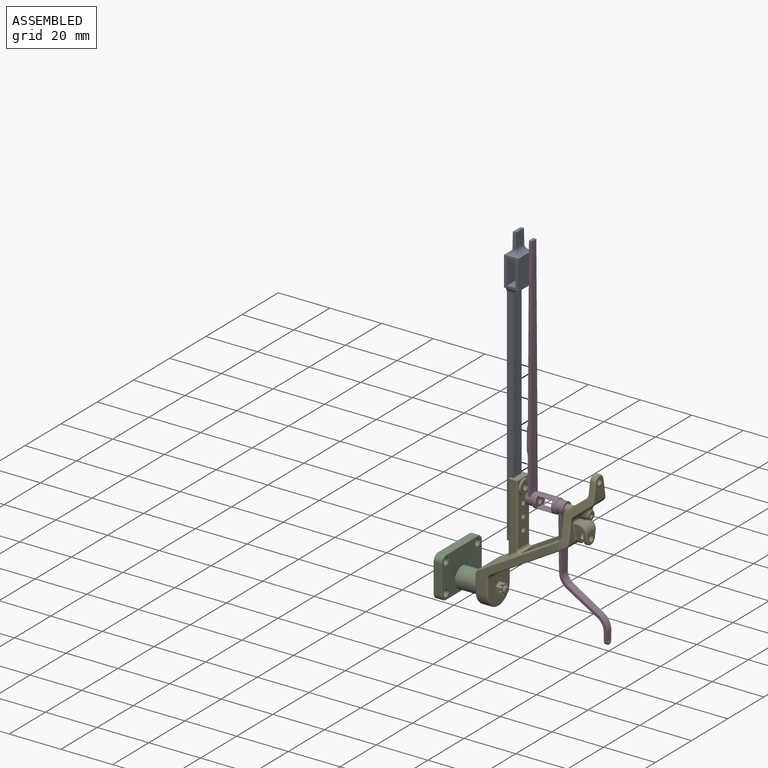
[diagram: assembled view]
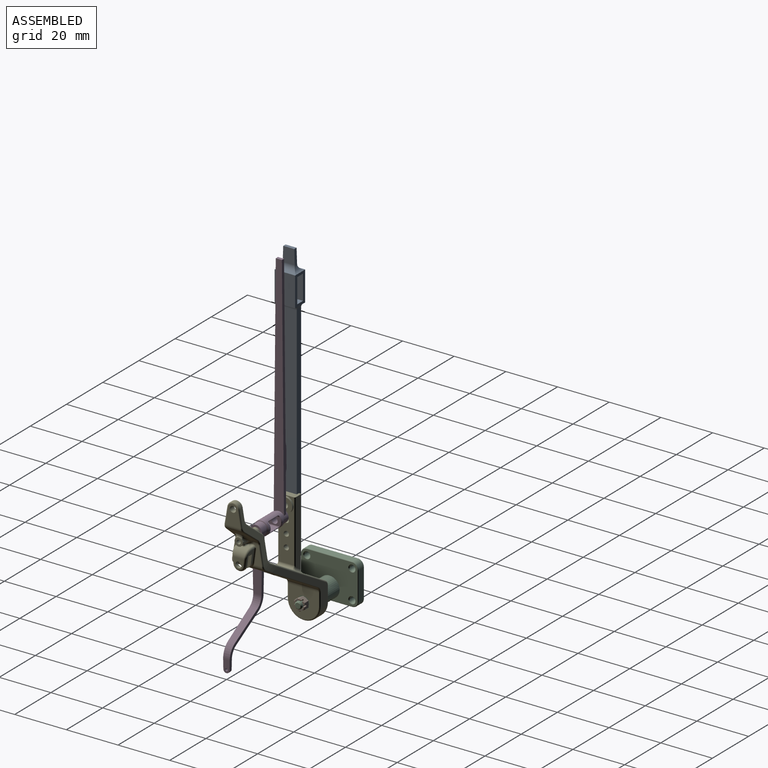
[diagram: assembled view, second angle]
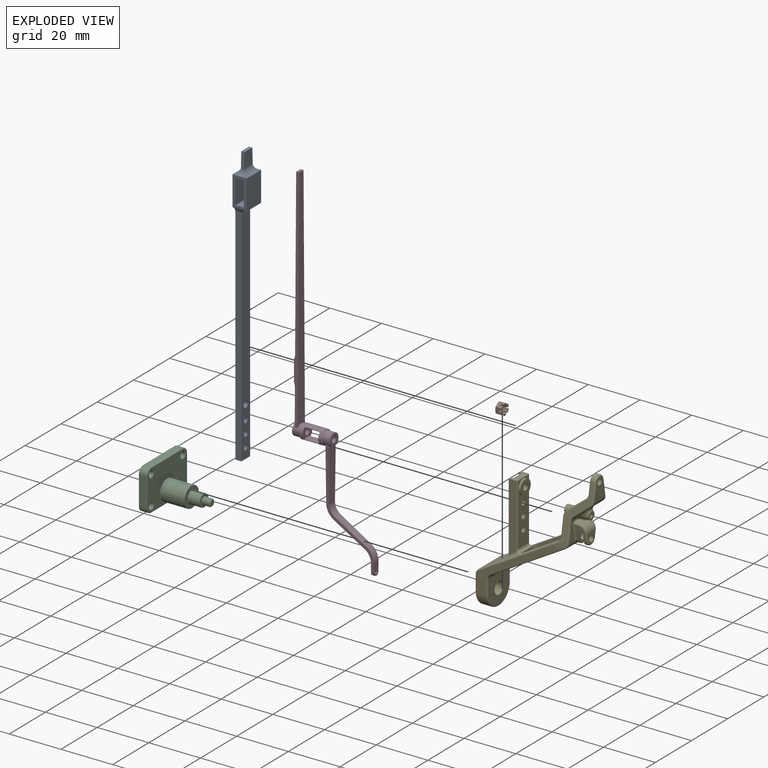
[diagram: exploded view]
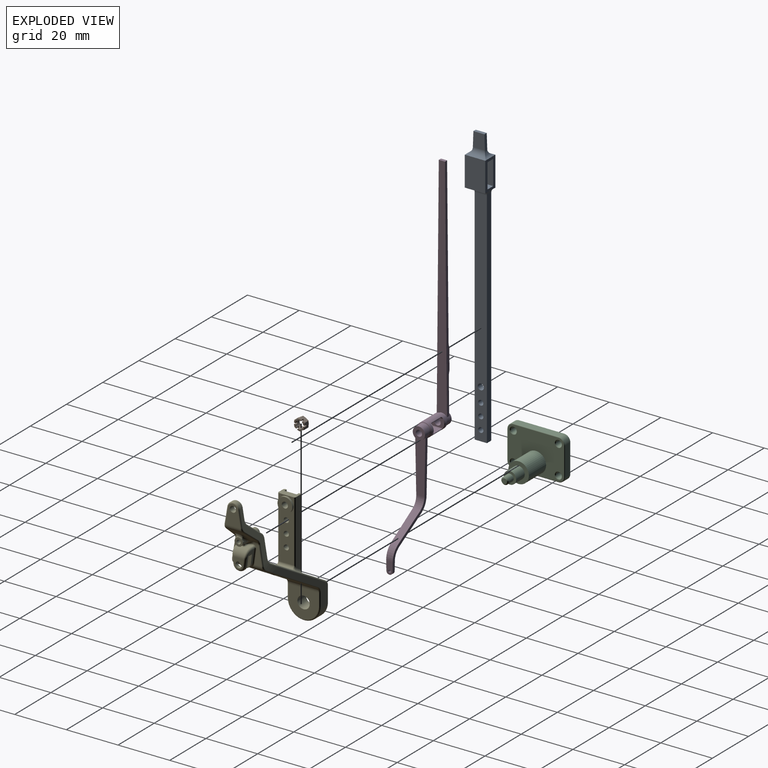
[diagram: exploded view, second angle]
ASSEMBLY  parts=5 mates=4
PART A: 29 faces, bbox 7.9x5.6x108.3 mm
  f0: plane 11.51x5.56mm, normal (-1,0,0), area 33.7mm2, adj f2,f3,f4,f5,f6,f7,f8,f13
  f1: plane 11.51x5.56mm, normal (1,0,0), area 33.7mm2, adj f2,f3,f4,f5,f6,f7,f8,f9
  f2: plane 7.94x0.79mm, normal (0,0,-1), area 6.3mm2, adj f0,f1,f3,f24
  f3: plane 11.51x7.94mm, normal (0,-1,0), area 91.4mm2, adj f0,f1,f2,f23
  f4: plane 100.41x7.94mm, normal (0,1,0), area 502.9mm2, adj f0,f1,f9,f10,f11,f12,f13,f22
  f5: plane 7.94x3.18mm, normal (0,0,-1), area 25.2mm2, adj f0,f1,f6,f8
  f6: plane 9.53x7.94mm, normal (0,-1,0), area 75.6mm2, adj f0,f1,f5,f7
  f7: plane 7.94x3.18mm, normal (0,0,1), area 25.2mm2, adj f0,f1,f6,f8
  f8: plane 9.53x7.94mm, normal (0,1,0), area 75.6mm2, adj f0,f1,f5,f7
  f9: cylinder r=2.38mm len=4.76mm, axis (0,1,0), area 9mm2, adj f1,f4,f10,f24
  f10: plane 86.66x2.39mm, normal (1,0,0), area 206.3mm2, adj f4,f9,f11,f14,f24
  f11: plane 4.76x2.38mm, normal (0,0,-1), area 11.3mm2, adj f4,f10,f12,f14
  f12: plane 86.66x2.39mm, normal (-1,0,0), area 206.3mm2, adj f4,f11,f13,f14,f24
  f13: cylinder r=2.38mm len=4.76mm, axis (0,1,0), area 9mm2, adj f0,f4,f12,f24
  f14: plane 86.52x4.76mm, normal (0,-1,0), area 398.3mm2, adj f10,f11,f12,f24,f25,f26,f27,f28
  f15: plane 4.27x1.29mm, normal (0,0,1), area 5.5mm2, adj f16,f19,f20,f21
  f16: plane 5.76x1.3mm, normal (-1,0,0.03), area 7.4mm2, adj f15,f17,f20,f21,f22,f23
  f17: cylinder r=2.38mm len=5.56mm, axis (0,1,0), area 7.9mm2, adj f0,f16,f22,f23
  f18: cylinder r=2.38mm len=5.56mm, axis (0,1,0), area 7.9mm2, adj f1,f19,f22,f23
  f19: plane 5.76x1.3mm, normal (1,0,0.03), area 7.4mm2, adj f15,f18,f20,f21,f22,f23
  f20: plane 5.57x4.65mm, normal (0,-1,0), area 24.8mm2, adj f15,f16,f19,f23
  f21: plane 5.57x4.65mm, normal (0,1,0), area 24.8mm2, adj f15,f16,f19,f22
  f22: cylinder r=2.38mm len=7.94mm, axis (1,0,0), area 20.7mm2, adj f4,f16,f17,f18,f19,f21
  f23: cylinder r=2.38mm len=7.94mm, axis (1,0,0), area 20.7mm2, adj f3,f16,f17,f18,f19,f20
  f24: cylinder r=2.38mm len=7.94mm, axis (-1,0,0), area 22.8mm2, adj f2,f9,f10,f12,f13,f14
  f25: cylinder r=0.99mm len=2.38mm, axis (0,-1,0), area 14.8mm2, adj f4,f14
  f26: cylinder r=0.99mm len=2.38mm, axis (0,-1,0), area 14.8mm2, adj f4,f14
  f27: cylinder r=0.99mm len=2.38mm, axis (0,-1,0), area 14.8mm2, adj f4,f14
  f28: cylinder r=1.19mm len=2.38mm, axis (0,-1,0), area 17.8mm2, adj f4,f14
PART B: 52 faces, bbox 2.4x4.7x4.7 mm
  f0: cylinder r=1.42mm len=2.85mm, axis (1,0,0), area 16mm2, adj f3,f6,f11,f15,f19,f32,f33,f34
  f1: plane 1.58x0.56mm, normal (-1,0,0), area 0.6mm2, adj f19,f31,f45,f47
  f2: cone r=2.03mm half-angle=60deg, axis (1,0,0), area 0.3mm2, adj f7,f13,f16,f41,f49
  f3: cone r=1.57mm half-angle=45deg, axis (-1,0,0), area 0.2mm2, adj f0,f16,f41,f49
  f4: plane 1.37x1.02mm, normal (-1,0,0), area 0.6mm2, adj f15,f29,f39,f50
  f5: cone r=2.03mm half-angle=60deg, axis (1,0,0), area 0.3mm2, adj f8,f12,f17,f34,f48
  f6: cone r=1.57mm half-angle=45deg, axis (-1,0,0), area 0.2mm2, adj f0,f12,f34,f48
  f7: plane 2.25x2.03mm, normal (0,0.5,-0.87), area 4.6mm2, adj f2,f13,f18,f23,f28,f29,f49,f50
  f8: plane 2.25x2.03mm, normal (0,-0.5,0.87), area 4.6mm2, adj f5,f14,f17,f25,f26,f31,f46,f47
  f9: plane 1.37x1.02mm, normal (-1,0,0), area 0.6mm2, adj f30,f32,f35,f40
  f10: cone r=2.03mm half-angle=60deg, axis (1,0,0), area 0.3mm2, adj f14,f18,f20,f38,f44
  f11: cone r=1.57mm half-angle=45deg, axis (-1,0,0), area 0.2mm2, adj f0,f20,f38,f44
  f12: plane 1.37x1.02mm, normal (-1,0,0), area 0.6mm2, adj f5,f6,f34,f48
  f13: plane 2.25x2.03mm, normal (0,-0.5,-0.87), area 4.6mm2, adj f2,f7,f17,f27,f28,f30,f40,f41
  f14: plane 2.25x2.03mm, normal (0,0.5,0.87), area 4.6mm2, adj f8,f10,f18,f24,f25,f31,f43,f44
  f15: cone r=1.57mm half-angle=45deg, axis (-1,0,0), area 0.2mm2, adj f0,f4,f39,f50
  f16: plane 1.58x0.56mm, normal (-1,0,0), area 0.6mm2, adj f2,f3,f41,f49
  f17: plane 2.35x2.25mm, normal (0,-1,0), area 4.6mm2, adj f5,f8,f13,f26,f27,f30,f34,f35
  f18: plane 2.35x2.25mm, normal (0,1,0), area 4.6mm2, adj f7,f10,f14,f23,f24,f29,f37,f38
  f19: cone r=1.57mm half-angle=45deg, axis (-1,0,0), area 0.2mm2, adj f0,f1,f45,f47
  f20: plane 1.37x1.02mm, normal (-1,0,0), area 0.6mm2, adj f10,f11,f38,f44
  f21: plane 4.06x4.06mm, normal (1,0,0), area 5.2mm2, adj f22,f33
  f22: cylinder r=2.03mm len=4.06mm, axis (-1,0,0), area 1.6mm2, adj f21,f23,f24,f25,f26,f27,f28
  f23: plane 1.76x1.02mm, normal (1,0,0), area 0.2mm2, adj f7,f18,f22
  f24: plane 1.76x1.02mm, normal (1,0,0), area 0.2mm2, adj f14,f18,f22
  f25: plane 2.03x0.59mm, normal (1,0,0), area 0.2mm2, adj f8,f14,f22
  f26: plane 1.76x1.02mm, normal (1,0,0), area 0.2mm2, adj f8,f17,f22
  f27: plane 1.76x1.02mm, normal (1,0,0), area 0.2mm2, adj f13,f17,f22
  f28: plane 2.03x0.59mm, normal (1,0,0), area 0.2mm2, adj f7,f13,f22
  f29: cone r=2.03mm half-angle=60deg, axis (1,0,0), area 0.3mm2, adj f4,f7,f18,f39,f50
  f30: cone r=2.03mm half-angle=60deg, axis (1,0,0), area 0.3mm2, adj f9,f13,f17,f35,f40
  f31: cone r=2.03mm half-angle=60deg, axis (1,0,0), area 0.3mm2, adj f1,f8,f14,f45,f47
  f32: cone r=1.57mm half-angle=45deg, axis (-1,0,0), area 0.2mm2, adj f0,f9,f35,f40
  f33: cone r=1.42mm half-angle=45deg, axis (1,0,0), area 2mm2, adj f0,f21
  f34: plane 0.8x0.63mm, normal (0,0,-1), area 0.5mm2, adj f0,f5,f6,f12,f17,f36
  f35: plane 0.8x0.63mm, normal (0,0,1), area 0.5mm2, adj f0,f9,f17,f30,f32,f36
  f36: cylinder r=0.25mm len=0.63mm, axis (0,-1,0), area 0.5mm2, adj f0,f17,f34,f35
  f37: cylinder r=0.25mm len=0.63mm, axis (0,-1,0), area 0.5mm2, adj f0,f18,f38,f39
  f38: plane 0.8x0.63mm, normal (0,0,-1), area 0.5mm2, adj f0,f10,f11,f18,f20,f37
  f39: plane 0.8x0.63mm, normal (0,0,1), area 0.5mm2, adj f0,f4,f15,f18,f29,f37
  f40: plane 0.8x0.55mm, normal (0,0.87,-0.5), area 0.5mm2, adj f0,f9,f13,f30,f32,f42
  f41: plane 0.8x0.55mm, normal (0,-0.87,0.5), area 0.5mm2, adj f0,f2,f3,f13,f16,f42
  f42: cylinder r=0.25mm len=0.8mm, axis (0,0.5,0.87), area 0.5mm2, adj f0,f13,f40,f41
  f43: cylinder r=0.25mm len=0.8mm, axis (0,0.5,0.87), area 0.5mm2, adj f0,f14,f44,f45
  f44: plane 0.8x0.55mm, normal (0,-0.87,0.5), area 0.5mm2, adj f0,f10,f11,f14,f20,f43
  f45: plane 0.8x0.55mm, normal (0,0.87,-0.5), area 0.5mm2, adj f0,f1,f14,f19,f31,f43
  f46: cylinder r=0.25mm len=0.8mm, axis (0,0.5,-0.87), area 0.5mm2, adj f0,f8,f47,f48
  f47: plane 0.8x0.55mm, normal (0,-0.87,-0.5), area 0.5mm2, adj f0,f1,f8,f19,f31,f46
  f48: plane 0.8x0.55mm, normal (0,0.87,0.5), area 0.5mm2, adj f0,f5,f6,f8,f12,f46
  f49: plane 0.8x0.55mm, normal (0,0.87,0.5), area 0.5mm2, adj f0,f2,f3,f7,f16,f51
  f50: plane 0.8x0.55mm, normal (0,-0.87,-0.5), area 0.5mm2, adj f0,f4,f7,f15,f29,f51
  f51: cylinder r=0.25mm len=0.8mm, axis (0,0.5,-0.87), area 0.5mm2, adj f0,f7,f49,f50
PART C: 33 faces, bbox 20.6x22.6x16.3 mm
  f0: plane 11.11x2.92mm, normal (0,-1,0), area 32.5mm2, adj f1,f7,f9,f25
  f1: cylinder r=2.38mm len=2.92mm, axis (-1,0,0), area 10.9mm2, adj f0,f2,f9,f27
  f2: plane 17.46x2.92mm, normal (0,0,-1), area 51mm2, adj f1,f3,f9,f29
  f3: cylinder r=2.38mm len=2.92mm, axis (-1,0,0), area 10.9mm2, adj f2,f4,f9,f31
  f4: plane 11.11x2.92mm, normal (0,1,0), area 32.5mm2, adj f3,f5,f9,f32
  f5: cylinder r=2.38mm len=2.92mm, axis (-1,0,0), area 10.9mm2, adj f4,f6,f9,f30
  f6: plane 17.46x2.92mm, normal (0,0,1), area 51mm2, adj f5,f7,f9,f28
  f7: cylinder r=2.38mm len=2.92mm, axis (-1,0,0), area 10.9mm2, adj f0,f6,f9,f26
  f8: plane 21.72x15.37mm, normal (1,0,0), area 256.3mm2, adj f10,f21,f22,f23,f24,f25,f26,f27
  f9: plane 22.23x15.88mm, normal (-1,0,0), area 331.9mm2, adj f0,f1,f2,f3,f4,f5,f6,f7
  f10: cylinder r=3.97mm len=9.53mm, axis (-1,0,0), area 237.5mm2, adj f8,f11
  f11: plane 7.94x7.94mm, normal (1,0,0), area 31.7mm2, adj f10,f12
  f12: cylinder r=2.38mm len=4.76mm, axis (-1,0,0), area 71.3mm2, adj f11,f13
  f13: plane 4.76x4.76mm, normal (1,0,0), area 11.5mm2, adj f12,f18
  f14: cylinder r=1.13mm len=2.92mm, axis (-1,0,0), area 20.7mm2, adj f9,f24
  f15: cylinder r=1.13mm len=2.92mm, axis (-1,0,0), area 20.7mm2, adj f9,f23
  f16: cylinder r=1.13mm len=2.92mm, axis (-1,0,0), area 20.7mm2, adj f9,f22
  f17: cylinder r=1.13mm len=2.92mm, axis (-1,0,0), area 20.7mm2, adj f9,f21
  f18: cylinder r=1.42mm len=2.85mm, axis (-1,0,0), area 25mm2, adj f13,f20
  f19: plane 2.08x2.08mm, normal (1,0,0), area 3.4mm2, adj f20
  f20: cone r=1.04mm half-angle=45deg, axis (-1,0,0), area 4.2mm2, adj f18,f19
  f21: cone r=1.38mm half-angle=45deg, axis (1,0,0), area 2.8mm2, adj f8,f17
  f22: cone r=1.38mm half-angle=45deg, axis (1,0,0), area 2.8mm2, adj f8,f16
  f23: cone r=1.38mm half-angle=45deg, axis (1,0,0), area 2.8mm2, adj f8,f15
  f24: cone r=1.38mm half-angle=45deg, axis (1,0,0), area 2.8mm2, adj f8,f14
  f25: cylinder r=0.25mm len=11.11mm, axis (0,0,1), area 4.4mm2, adj f0,f8,f26,f27
  f26: torus R=2.13mm, axis (1,0,0), area 1.4mm2, adj f7,f8,f25,f28
  f27: torus R=2.13mm, axis (1,0,0), area 1.4mm2, adj f1,f8,f25,f29
  f28: cylinder r=0.25mm len=17.46mm, axis (0,1,0), area 7mm2, adj f6,f8,f26,f30
  f29: cylinder r=0.25mm len=17.46mm, axis (0,-1,0), area 7mm2, adj f2,f8,f27,f31
  f30: torus R=2.13mm, axis (1,0,0), area 1.4mm2, adj f5,f8,f28,f32
  f31: torus R=2.13mm, axis (1,0,0), area 1.4mm2, adj f3,f8,f29,f32
  f32: cylinder r=0.25mm len=11.11mm, axis (0,0,-1), area 4.4mm2, adj f4,f8,f30,f31
PART D: 58 faces, bbox 31x6x133.8 mm
  f0: plane 20.91x3.97mm, normal (-1,0,0), area 71.5mm2, adj f8,f14,f54,f57
  f1: plane 4.76x2.52mm, normal (1,0,0), area 10.2mm2, adj f5,f54,f55,f56,f57
  f2: plane 4.76x2.52mm, normal (-1,0,0), area 10.2mm2, adj f6,f54,f55,f56,f57
  f3: cylinder r=4.76mm len=4.09mm, axis (0,1,0), area 15.1mm2, adj f4,f9,f54,f57
  f4: plane 11.84x7.07mm, normal (0.51,0,0.86), area 39.4mm2, adj f3,f5,f54,f57
  f5: cylinder r=5.95mm len=5.11mm, axis (0,1,0), area 16.1mm2, adj f1,f4,f54,f57
  f6: cylinder r=4.76mm len=4.09mm, axis (0,1,0), area 12.8mm2, adj f2,f7,f54,f57
  f7: plane 11.84x7.07mm, normal (-0.51,0,-0.86), area 38.9mm2, adj f6,f8,f54,f57
  f8: cylinder r=5.95mm len=5.11mm, axis (0,1,0), area 18.8mm2, adj f0,f7,f54,f57
  f9: plane 20.91x3.97mm, normal (1,0,0), area 71.5mm2, adj f3,f14,f54,f57
  f10: plane 63.58x3.51mm, normal (-1,0,0), area 187.4mm2, adj f46,f47,f48,f53
  f11: cylinder r=2.38mm len=4.76mm, axis (1,0,0), area 36mm2, adj f16,f44,f46,f48,f49,f50
  f12: cylinder r=2.78mm len=8.33mm, axis (-1,0,0), area 75.4mm2, adj f26,f27,f28,f29,f30,f31,f32,f33
  f13: cylinder r=1.19mm len=4.37mm, axis (1,0,0), area 32.7mm2, adj f15,f22
  f14: cylinder r=2.38mm len=4.76mm, axis (-1,0,0), area 36mm2, adj f0,f9,f15,f45,f54,f57
  f15: plane 4.76x4.76mm, normal (1,0,0), area 13.4mm2, adj f13,f14
  f16: plane 4.76x4.76mm, normal (-1,0,0), area 13.4mm2, adj f11,f17
  f17: cylinder r=1.19mm len=4.37mm, axis (-1,0,0), area 32.7mm2, adj f16,f23
  f18: cylinder r=0.4mm len=4.07mm, axis (0,-1,0), area 2.1mm2, adj f22,f24,f33,f41
  f19: cylinder r=0.4mm len=4.07mm, axis (0,-1,0), area 2.1mm2, adj f23,f24,f29,f38
  f20: cylinder r=0.4mm len=4.07mm, axis (0,-1,0), area 2.1mm2, adj f23,f25,f26,f34
  f21: cylinder r=0.4mm len=4.07mm, axis (0,-1,0), area 2.1mm2, adj f22,f25,f30,f37
  f22: plane 5.16x3.18mm, normal (-1,0,0), area 10.8mm2, adj f13,f18,f21,f32,f39
  f23: plane 5.16x3.18mm, normal (1,0,0), area 10.8mm2, adj f17,f19,f20,f27,f36
  f24: plane 5.16x2.75mm, normal (0,0,-1), area 14.2mm2, adj f18,f19,f31,f40
  f25: plane 5.16x2.75mm, normal (0,0,1), area 14.2mm2, adj f20,f21,f28,f35
  f26: bspline ~0.85x0.79mm, area 0.4mm2, adj f12,f20,f27,f28
  f27: torus R=2.58mm, axis (-1,0,0), area 1.1mm2, adj f12,f23,f26,f29
  f28: cylinder r=0.2mm len=5.16mm, axis (-1,0,0), area 2.6mm2, adj f12,f25,f26,f30
  f29: bspline ~0.94x0.87mm, area 0.4mm2, adj f12,f19,f27,f31
  f30: bspline ~0.94x0.87mm, area 0.4mm2, adj f12,f21,f28,f32
  f31: cylinder r=0.2mm len=5.16mm, axis (-1,0,0), area 2.6mm2, adj f12,f24,f29,f33
  f32: torus R=2.58mm, axis (-1,0,0), area 1.1mm2, adj f12,f22,f30,f33
  f33: bspline ~0.85x0.79mm, area 0.4mm2, adj f12,f18,f31,f32
  f34: bspline ~0.94x0.87mm, area 0.4mm2, adj f12,f20,f35,f36
  f35: cylinder r=0.2mm len=5.16mm, axis (-1,0,0), area 2.6mm2, adj f12,f25,f34,f37
  f36: torus R=2.58mm, axis (-1,0,0), area 1.1mm2, adj f12,f23,f34,f38
  f37: bspline ~0.85x0.79mm, area 0.4mm2, adj f12,f21,f35,f39
  f38: bspline ~0.85x0.79mm, area 0.4mm2, adj f12,f19,f36,f40
  f39: torus R=2.58mm, axis (-1,0,0), area 1.1mm2, adj f12,f22,f37,f41
  f40: cylinder r=0.2mm len=5.16mm, axis (-1,0,0), area 2.6mm2, adj f12,f24,f38,f41
  f41: bspline ~0.94x0.87mm, area 0.4mm2, adj f12,f18,f39,f40
  f42: torus R=2.58mm, axis (1,0,0), area 5.3mm2, adj f12,f44
  f43: torus R=2.58mm, axis (1,0,0), area 5.3mm2, adj f12,f45
  f44: torus R=2.58mm, axis (1,0,0), area 4.8mm2, adj f11,f42
  f45: torus R=2.58mm, axis (1,0,0), area 4.8mm2, adj f14,f43
  f46: plane 89.17x1.59mm, normal (0,-1,0.01), area 109.8mm2, adj f10,f11,f47,f49,f50,f51,f52,f53
  f47: plane 2.38x1.19mm, normal (0,0,1), area 2.8mm2, adj f10,f46,f48,f49
  f48: plane 89.17x1.59mm, normal (0,1,0.01), area 109.8mm2, adj f10,f11,f47,f49,f50,f51,f52,f53
  f49: plane 89.17x3.97mm, normal (1,0,0), area 280.1mm2, adj f11,f46,f47,f48
  f50: plane 13.85x3.97mm, normal (-1,0,0), area 50.3mm2, adj f11,f46,f48,f52
  f51: plane 7.94x3.69mm, normal (-1,0,0), area 28.7mm2, adj f46,f48,f52,f53
  f52: cylinder r=4.76mm len=3.72mm, axis (0,-1,0), area 7.3mm2, adj f46,f48,f50,f51
  f53: cylinder r=4.76mm len=3.55mm, axis (0,-1,0), area 6.9mm2, adj f10,f46,f48,f51
  f54: plane 40.79x18.27mm, normal (0,1,-0.02), area 58.8mm2, adj f0,f1,f2,f3,f4,f5,f6,f7
  f55: cylinder r=1.19mm len=2.38mm, axis (1,0,0), area 4.4mm2, adj f1,f2,f54,f57
  f56: cylinder r=0.5mm len=1.19mm, axis (1,0,0), area 3.7mm2, adj f1,f2
  f57: plane 40.79x18.27mm, normal (0,-1,-0.02), area 58.8mm2, adj f0,f1,f2,f3,f4,f5,f6,f7
PART E: 181 faces, bbox 44.3x14.1x57.3 mm
  f0: torus R=2.86mm, axis (-1,0,0), area 0.6mm2, adj f54,f82,f166
  f1: plane 1.36x1.08mm, normal (0,0,1), area 1.2mm2, adj f151,f158,f172,f174,f176,f178
  f2: plane 5.02x3.49mm, normal (0,-0.99,-0.14), area 9.4mm2, adj f8,f9,f34,f35,f36,f156,f157,f158
  f3: plane 5.02x3.49mm, normal (0,0.99,-0.14), area 9.4mm2, adj f8,f9,f34,f35,f36,f152,f153,f154
  f4: plane 1.36x1.08mm, normal (0,0,1), area 1.2mm2, adj f151,f152,f162,f164,f166,f168
  f5: plane 7.01x2.89mm, normal (-1,0,0), area 12.6mm2, adj f42,f50,f137,f138,f175,f177,f179
  f6: cylinder r=2.38mm len=2.27mm, axis (0,-1,0), area 3.8mm2, adj f11,f17,f82,f119,f160,f162
  f7: cylinder r=2.38mm len=2.65mm, axis (0,1,0), area 4mm2, adj f13,f14,f85,f93
  f8: cylinder r=2.38mm len=4.72mm, axis (1,0,0), area 4.3mm2, adj f2,f3,f35,f155
  f9: cylinder r=2.38mm len=4.72mm, axis (1,0,0), area 7.3mm2, adj f2,f3,f36,f163,f165,f167,f169,f171
  f10: cylinder r=1.19mm len=2.38mm, axis (1,0,0), area 10.4mm2, adj f33,f35
  f11: plane 7.01x2.89mm, normal (-1,0,0), area 12.6mm2, adj f6,f44,f115,f117,f159,f161,f163
  f12: plane 30.65x17.98mm, normal (0.5,0,0.86), area 212.3mm2, adj f30,f31,f32,f40,f43,f46,f87,f88
  f13: plane 10.58x6.71mm, normal (1,0,0), area 52.4mm2, adj f7,f37,f40,f43,f47,f86,f91,f111
  f14: plane 7.78x6.94mm, normal (0.62,0,0.78), area 59.4mm2, adj f7,f47,f48,f83,f95,f107
  f15: plane 5.71x5.11mm, normal (1,0,0), area 18.2mm2, adj f27,f48,f99,f101,f103
  f16: plane 7.87x5.85mm, normal (-1,0,0), area 30mm2, adj f27,f49,f125,f127,f129
  f17: plane 8.03x6.15mm, normal (-0.62,0,-0.78), area 29.7mm2, adj f6,f49,f50,f77,f79,f81,f121,f133
  f18: plane 30.66x22.32mm, normal (0,-1,0), area 92.3mm2, adj f24,f38,f106,f108,f110,f128,f130,f132
  f19: plane 11.72x11.68mm, normal (1,0,0), area 104.5mm2, adj f23,f46,f102,f104,f106
  f20: plane 11.68x10.82mm, normal (-1,0,0), area 94mm2, adj f23,f51,f124,f126,f128
  f21: plane 30.66x22.32mm, normal (0,1,0), area 92.3mm2, adj f24,f39,f98,f100,f102,f120,f122,f124
  f22: plane 30.13x17.68mm, normal (-0.5,0,-0.86), area 245.9mm2, adj f29,f30,f31,f32,f41,f42,f44,f45
  f23: cylinder r=2.38mm len=4.76mm, axis (-1,0,0), area 71.3mm2, adj f19,f20
  f24: cylinder r=6.35mm len=12.7mm, axis (-1,0,0), area 74.7mm2, adj f18,f21,f104,f126
  f25: plane 21.3x10.34mm, normal (0,0.99,0.17), area 50.7mm2, adj f26,f39,f91,f92,f93,f95,f97,f99
  f26: cylinder r=2.38mm len=4.69mm, axis (-1,0,0), area 9.1mm2, adj f25,f28,f101,f127
  f27: cylinder r=1.19mm len=2.38mm, axis (-1,0,0), area 17.8mm2, adj f15,f16
  f28: plane 21.3x10.34mm, normal (0,-0.99,0.17), area 50.7mm2, adj f26,f38,f103,f105,f107,f109,f111,f113
  f29: plane 5.4x3.69mm, normal (1,0,0), area 19.9mm2, adj f22,f37,f40,f43,f87,f90
  f30: plane 13.34x11.44mm, normal (0,1,0), area 49mm2, adj f12,f22,f87,f88
  f31: plane 5.4x3.67mm, normal (-1,0,0), area 19.8mm2, adj f12,f22,f88,f89
  f32: plane 13.34x11.44mm, normal (0,-1,0), area 49mm2, adj f12,f22,f89,f90
  f33: plane 4x3.93mm, normal (-1,0,0), area 8.2mm2, adj f10,f151,f154,f155,f156
  f34: plane 5.69x1.98mm, normal (0,0,-1), area 11.3mm2, adj f2,f3,f35,f36
  f35: plane 5.69x5.56mm, normal (1,0,0), area 21.1mm2, adj f2,f3,f8,f10,f34
  f36: plane 5.69x5.56mm, normal (-1,0,0), area 21.1mm2, adj f2,f3,f9,f34,f37
  f37: cylinder r=1.19mm len=5.52mm, axis (1,0,0), area 37.3mm2, adj f13,f29,f36,f40,f43
  f38: cylinder r=25.4mm len=8.49mm, axis (-1,0,0), area 16mm2, adj f18,f28,f112,f114,f134,f136,f138
  f39: cylinder r=25.4mm len=8.49mm, axis (-1,0,0), area 16mm2, adj f21,f25,f94,f96,f115,f116,f118
  f40: cylinder r=2.38mm len=5.21mm, axis (0,-1,0), area 10.6mm2, adj f12,f13,f29,f37,f87,f113,f114
  f41: bspline ~2.69x2.26mm, area 1.4mm2, adj f22,f42,f171
  f42: cylinder r=2.38mm len=3.61mm, axis (0,1,0), area 8.5mm2, adj f5,f22,f41,f136,f173
  f43: cylinder r=2.38mm len=5.21mm, axis (0,-1,0), area 10.6mm2, adj f12,f13,f29,f37,f90,f92,f94
  f44: cylinder r=2.38mm len=3.61mm, axis (0,1,0), area 8.5mm2, adj f11,f22,f45,f116,f165
  f45: bspline ~2.69x2.26mm, area 1.4mm2, adj f22,f44,f167
  f46: cylinder r=2.38mm len=11.68mm, axis (0,1,0), area 29mm2, adj f12,f19,f100,f108
  f47: cylinder r=2.38mm len=2.65mm, axis (0,1,0), area 4mm2, adj f13,f14,f84,f109
  f48: cylinder r=2.38mm len=5.88mm, axis (0,-1,0), area 11.7mm2, adj f14,f15,f97,f105
  f49: cylinder r=2.38mm len=6.35mm, axis (0,1,0), area 13mm2, adj f16,f17,f123,f131
  f50: cylinder r=2.38mm len=2.27mm, axis (0,-1,0), area 3.8mm2, adj f5,f17,f78,f135,f178,f180
  f51: cylinder r=2.38mm len=11.68mm, axis (0,-1,0), area 29mm2, adj f20,f22,f122,f130
  f52: cylinder r=0.79mm len=4.47mm, axis (1,0,0), area 18.2mm2, adj f53,f55,f56
  f53: plane 3.46x3.46mm, normal (-1,0,0), area 5.9mm2, adj f52,f54,f79
  f54: cylinder r=1.59mm len=3.49mm, axis (1,0,0), area 15.3mm2, adj f0,f53,f77,f78,f80,f81,f82,f168
  f55: cylinder r=2.38mm len=1.58mm, axis (0,-1,0), area 0.7mm2, adj f52,f56
  f56: plane 1.59x1.09mm, normal (-0.62,0,-0.78), area 1.8mm2, adj f52,f55
  f57: cylinder r=0.79mm len=1.59mm, axis (1,0,0), area 7.9mm2, adj f59,f60,f61
  f58: cylinder r=1.59mm len=3.18mm, axis (1,0,0), area 8mm2, adj f59,f83,f84,f85,f86
  f59: plane 3.18x3.18mm, normal (1,0,0), area 5.9mm2, adj f57,f58
  f60: cylinder r=2.38mm len=1.59mm, axis (0,1,0), area 1.7mm2, adj f57,f61
  f61: plane 1.36x0.38mm, normal (1,0,0), area 0.4mm2, adj f57,f60
  f62: plane 26.19x2.57mm, normal (0,-1,0), area 65.3mm2, adj f66,f139,f142,f147
  f63: plane 27.07x5.74mm, normal (1,0,0), area 49.6mm2, adj f66,f67,f69,f70,f139,f140,f150
  f64: plane 26.19x2.57mm, normal (0,1,0), area 65.3mm2, adj f66,f140,f141,f146
  f65: plane 23.8x5.74mm, normal (-1,0,0), area 101.7mm2, adj f66,f71,f74,f75,f76,f141,f142,f143
  f66: plane 6.76x3.58mm, normal (0,0,1), area 18.3mm2, adj f62,f63,f64,f65,f67,f68,f69,f139
  f67: plane 22.23x1.19mm, normal (0,-1,0), area 26.5mm2, adj f63,f66,f68,f70
  f68: plane 22.23x4.76mm, normal (1,0,0), area 92.1mm2, adj f66,f67,f69,f70,f73,f74,f75,f76
  f69: plane 22.23x1.19mm, normal (0,1,0), area 26.5mm2, adj f63,f66,f68,f70
  f70: plane 4.76x1.19mm, normal (0,0,1), area 5.7mm2, adj f63,f67,f68,f69
  f71: cylinder r=2.86mm len=5.72mm, axis (1,0,0), area 14.3mm2, adj f65,f72
  f72: plane 5.72x5.72mm, normal (-1,0,0), area 21.2mm2, adj f71,f73
  f73: cylinder r=1.19mm len=3.18mm, axis (-1,0,0), area 23.8mm2, adj f68,f72
  f74: cylinder r=0.99mm len=2.39mm, axis (-1,0,0), area 14.9mm2, adj f65,f68
  f75: cylinder r=0.99mm len=2.39mm, axis (-1,0,0), area 14.9mm2, adj f65,f68
  f76: cylinder r=0.99mm len=2.39mm, axis (-1,0,0), area 14.9mm2, adj f65,f68
  f77: bspline ~3.87x2.98mm, area 7.2mm2, adj f17,f54,f78,f79
  f78: bspline ~2.75x2.07mm, area 2.6mm2, adj f50,f54,f77,f80,f176
  f79: bspline ~5.07x2.53mm, area 8.3mm2, adj f17,f53,f77,f81
  f80: torus R=2.86mm, axis (-1,0,0), area 0.6mm2, adj f54,f78,f174
  f81: bspline ~3.87x2.98mm, area 7.2mm2, adj f17,f54,f79,f82
  f82: bspline ~2.75x2.07mm, area 2.6mm2, adj f0,f6,f54,f81,f164
  f83: bspline ~2.98x1.32mm, area 2.5mm2, adj f14,f58,f84,f85
  f84: bspline ~2.36x2.36mm, area 3.6mm2, adj f47,f58,f83,f86
  f85: bspline ~2.36x2.36mm, area 3.6mm2, adj f7,f58,f83,f86
  f86: torus R=2.86mm, axis (1,0,0), area 11.7mm2, adj f13,f58,f84,f85
  f87: cylinder r=1.27mm len=4.43mm, axis (0,0,-1), area 7.5mm2, adj f12,f22,f29,f30,f40
  f88: cylinder r=1.27mm len=4.41mm, axis (0,0,1), area 7.3mm2, adj f12,f22,f30,f31
  f89: cylinder r=1.27mm len=4.41mm, axis (0,0,-1), area 7.3mm2, adj f12,f22,f31,f32
  f90: cylinder r=1.27mm len=4.43mm, axis (0,0,1), area 7.5mm2, adj f12,f22,f29,f32,f43
  f91: cylinder r=0.51mm len=6.8mm, axis (0,-0.17,0.99), area 5.4mm2, adj f13,f25,f92,f93
  f92: bspline ~1.68x0.88mm, area 0.8mm2, adj f25,f43,f91,f94
  f93: bspline ~2.08x1.31mm, area 1.5mm2, adj f7,f25,f91,f95
  f94: bspline ~2.36x2.13mm, area 1.2mm2, adj f39,f43,f92,f96
  f95: cylinder r=0.51mm len=7.26mm, axis (-0.78,-0.11,0.62), area 6.5mm2, adj f14,f25,f93,f97
  f96: bspline ~15.15x9.2mm, area 4.4mm2, adj f12,f39,f94,f98
  f97: bspline ~2.87x1.52mm, area 1.8mm2, adj f25,f48,f95,f99
  f98: cylinder r=0.51mm len=25.7mm, axis (-0.86,0,0.5), area 23.5mm2, adj f12,f21,f96,f100
  f99: cylinder r=0.51mm len=4.24mm, axis (0,-0.17,0.99), area 3.4mm2, adj f15,f25,f97,f101
  f100: torus R=1.87mm, axis (0,-1,0), area 1.8mm2, adj f21,f46,f98,f102
  f101: torus R=1.87mm, axis (1,0,0), area 4.9mm2, adj f15,f26,f99,f103
  f102: cylinder r=0.51mm len=5.88mm, axis (0,0,1), area 4.7mm2, adj f19,f21,f100,f104
  f103: cylinder r=0.51mm len=4.24mm, axis (0,-0.17,-0.99), area 3.4mm2, adj f15,f28,f101,f105
  f104: torus R=5.84mm, axis (1,0,0), area 15.5mm2, adj f19,f24,f102,f106
  f105: bspline ~2.87x1.52mm, area 1.8mm2, adj f28,f48,f103,f107
  f106: cylinder r=0.51mm len=5.88mm, axis (0,0,-1), area 4.7mm2, adj f18,f19,f104,f108
  f107: cylinder r=0.51mm len=7.26mm, axis (0.78,-0.11,-0.62), area 6.5mm2, adj f14,f28,f105,f109
  f108: torus R=1.87mm, axis (0,-1,0), area 1.8mm2, adj f18,f46,f106,f110
  f109: bspline ~2.08x1.31mm, area 1.5mm2, adj f28,f47,f107,f111
  f110: cylinder r=0.51mm len=25.7mm, axis (0.86,0,-0.5), area 23.5mm2, adj f12,f18,f108,f112
  f111: cylinder r=0.51mm len=6.8mm, axis (0,-0.17,-0.99), area 5.4mm2, adj f13,f28,f109,f113
  f112: bspline ~15.15x9.2mm, area 4.4mm2, adj f12,f38,f110,f114
  f113: bspline ~1.68x0.88mm, area 0.8mm2, adj f28,f40,f111,f114
  f114: bspline ~2.36x2.13mm, area 1.2mm2, adj f38,f40,f112,f113
  f115: torus R=24.89mm, axis (-1,0,0), area 0.5mm2, adj f11,f39,f116,f117
  f116: bspline ~2.89x1.82mm, area 1.9mm2, adj f39,f44,f115,f118
  f117: cylinder r=0.51mm len=6.43mm, axis (0,0.17,-0.99), area 5.1mm2, adj f11,f25,f115,f119
  f118: bspline ~9.59x5.95mm, area 3.1mm2, adj f22,f39,f116,f120
  f119: bspline ~2.56x1.57mm, area 1.9mm2, adj f6,f25,f117,f121
  f120: cylinder r=0.51mm len=25.74mm, axis (0.86,0,-0.5), area 23.5mm2, adj f21,f22,f118,f122
  f121: cylinder r=0.51mm len=6.47mm, axis (0.78,0.11,-0.62), area 6.9mm2, adj f17,f25,f119,f123
  f122: torus R=2.89mm, axis (0,-1,0), area 2.1mm2, adj f21,f51,f120,f124
  f123: bspline ~1.95x1.21mm, area 1.7mm2, adj f25,f49,f121,f125
  f124: cylinder r=0.51mm len=4.98mm, axis (0,0,-1), area 4mm2, adj f20,f21,f122,f126
  f125: cylinder r=0.51mm len=6.4mm, axis (0,0.17,-0.99), area 5.1mm2, adj f16,f25,f123,f127
  f126: torus R=5.84mm, axis (-1,0,0), area 15.5mm2, adj f20,f24,f124,f128
  f127: torus R=1.87mm, axis (-1,0,0), area 4.9mm2, adj f16,f26,f125,f129
  f128: cylinder r=0.51mm len=4.98mm, axis (0,0,1), area 4mm2, adj f18,f20,f126,f130
  f129: cylinder r=0.51mm len=6.4mm, axis (0,0.17,0.99), area 5.1mm2, adj f16,f28,f127,f131
  f130: torus R=2.89mm, axis (0,-1,0), area 2.1mm2, adj f18,f51,f128,f132
  f131: bspline ~1.95x1.21mm, area 1.7mm2, adj f28,f49,f129,f133
  f132: cylinder r=0.51mm len=25.74mm, axis (-0.86,0,0.5), area 23.5mm2, adj f18,f22,f130,f134
  f133: cylinder r=0.51mm len=6.47mm, axis (-0.78,0.11,0.62), area 6.9mm2, adj f17,f28,f131,f135
  f134: bspline ~15.15x9.2mm, area 3.1mm2, adj f22,f38,f132,f136
  f135: bspline ~2.56x1.57mm, area 1.9mm2, adj f28,f50,f133,f137
  f136: bspline ~2.74x1.53mm, area 1.9mm2, adj f38,f42,f134,f138
  f137: cylinder r=0.51mm len=6.43mm, axis (0,0.17,0.99), area 5.1mm2, adj f5,f28,f135,f138
  f138: torus R=24.89mm, axis (-1,0,0), area 0.5mm2, adj f5,f38,f136,f137
  f139: cylinder r=0.51mm len=27.07mm, axis (0,0,1), area 21.2mm2, adj f62,f63,f66,f149
  f140: cylinder r=0.51mm len=27.07mm, axis (0,0,-1), area 21.2mm2, adj f63,f64,f66,f148
  f141: cylinder r=0.51mm len=24.69mm, axis (0,0,1), area 19.3mm2, adj f64,f65,f66,f144
  f142: cylinder r=0.51mm len=24.69mm, axis (0,0,-1), area 19.3mm2, adj f62,f65,f66,f145
  f143: cylinder r=1.02mm len=5.74mm, axis (0,1,0), area 12.2mm2, adj f12,f65,f144,f145
  f144: bspline ~2.19x2.03mm, area 2.8mm2, adj f12,f141,f143,f146
  f145: bspline ~2.19x2.03mm, area 2.8mm2, adj f12,f142,f143,f147
  f146: cylinder r=1.02mm len=3.08mm, axis (0.86,0,-0.5), area 4.7mm2, adj f12,f64,f144,f148
  f147: cylinder r=1.02mm len=3.08mm, axis (-0.86,0,0.5), area 4.7mm2, adj f12,f62,f145,f149
  f148: bspline ~1.81x1.61mm, area 2.2mm2, adj f12,f140,f146,f150
  f149: bspline ~1.92x1.79mm, area 2.2mm2, adj f12,f139,f147,f150
  f150: cylinder r=1.02mm len=5.74mm, axis (0,-1,0), area 6.1mm2, adj f12,f63,f148,f149
  f151: cylinder r=3.17mm len=4.6mm, axis (0,-1,0), area 19.6mm2, adj f1,f4,f33,f153,f157,f170
  f152: cylinder r=0.76mm len=1.08mm, axis (-1,0,0), area 1.4mm2, adj f3,f4,f153,f159,f160
  f153: bspline ~3.75x3.42mm, area 5.8mm2, adj f3,f151,f152,f154
  f154: cylinder r=0.76mm len=2.71mm, axis (0,0.14,0.99), area 3.1mm2, adj f3,f33,f153,f155
  f155: torus R=1.62mm, axis (-1,0,0), area 7.2mm2, adj f8,f33,f154,f156
  f156: cylinder r=0.76mm len=2.71mm, axis (0,0.14,-0.99), area 3.1mm2, adj f2,f33,f155,f157
  f157: bspline ~3.42x3.18mm, area 5.8mm2, adj f2,f151,f156,f158
  f158: cylinder r=0.76mm len=1.08mm, axis (1,0,0), area 1.4mm2, adj f1,f2,f157,f179,f180
  f159: torus R=1.27mm, axis (-1,0,0), area 1mm2, adj f11,f152,f160,f161
  f160: bspline ~0.72x0.64mm, area 0.2mm2, adj f6,f152,f159,f162
  f161: cylinder r=0.51mm len=5.09mm, axis (0,-0.14,-0.99), area 4mm2, adj f3,f11,f159,f163
  f162: cylinder r=0.51mm len=0.53mm, axis (0,-1,0), area 0.1mm2, adj f4,f6,f160,f164
  f163: torus R=2.89mm, axis (-1,0,0), area 0.5mm2, adj f9,f11,f161,f165
  f164: bspline ~0.8x0.61mm, area 0.1mm2, adj f4,f82,f162,f166
  f165: bspline ~1.68x1.47mm, area 0.7mm2, adj f9,f44,f163,f167
  f166: bspline ~3.33x1.58mm, area 2.2mm2, adj f0,f4,f164,f168
  f167: bspline ~2.39x1.08mm, area 0.9mm2, adj f9,f45,f165,f169
  f168: cylinder r=0.51mm len=0.96mm, axis (1,0,0), area 0.4mm2, adj f4,f54,f166,f170
  f169: bspline ~0.26x0.12mm, area 0mm2, adj f9,f22,f167,f171
  f170: bspline ~1.88x1.26mm, area 3.3mm2, adj f54,f151,f168,f172
  f171: bspline ~2.38x1.04mm, area 0.9mm2, adj f9,f41,f169,f173
  f172: cylinder r=0.51mm len=0.96mm, axis (1,0,0), area 0.4mm2, adj f1,f54,f170,f174
  f173: bspline ~1.68x1.47mm, area 0.7mm2, adj f9,f42,f171,f175
  f174: bspline ~3.56x1.82mm, area 2.2mm2, adj f1,f80,f172,f176
  f175: torus R=2.89mm, axis (-1,0,0), area 0.5mm2, adj f5,f9,f173,f177
  f176: bspline ~0.8x0.61mm, area 0.1mm2, adj f1,f78,f174,f178
  f177: cylinder r=0.51mm len=5.09mm, axis (0,-0.14,0.99), area 4mm2, adj f2,f5,f175,f179
  f178: cylinder r=0.51mm len=0.53mm, axis (0,-1,0), area 0.1mm2, adj f1,f50,f176,f180
  f179: torus R=1.27mm, axis (-1,0,0), area 1mm2, adj f5,f158,f177,f180
  f180: bspline ~0.75x0.58mm, area 0.2mm2, adj f50,f158,f178,f179
PLACE A rot(axis=(0,0,1),90deg) t=(25,0,110.4)mm
PLACE B rot(axis=(0,0,1),180deg) t=(17.46,0,-3.18)mm
PLACE C at identity
PLACE D t=(36.47,0,31.62)mm
PLACE E rot(axis=(0,0,1),180deg) t=(15.08,0,-3.18)mm
MATE fastened B.f0 <-> C.f10  axis (-1,0,0) through (17.46,0,-3.18)mm
MATE fastened A.f28 <-> E.f71  axis (1,0,0) through (24.61,0,34.8)mm
MATE fastened D.f11 <-> E.f0  axis (1,0,0) through (43.82,0,31.62)mm
MATE revolute C.f10 <-> E.f23  axis (1,0,0) through (12.7,0,-3.18)mm
